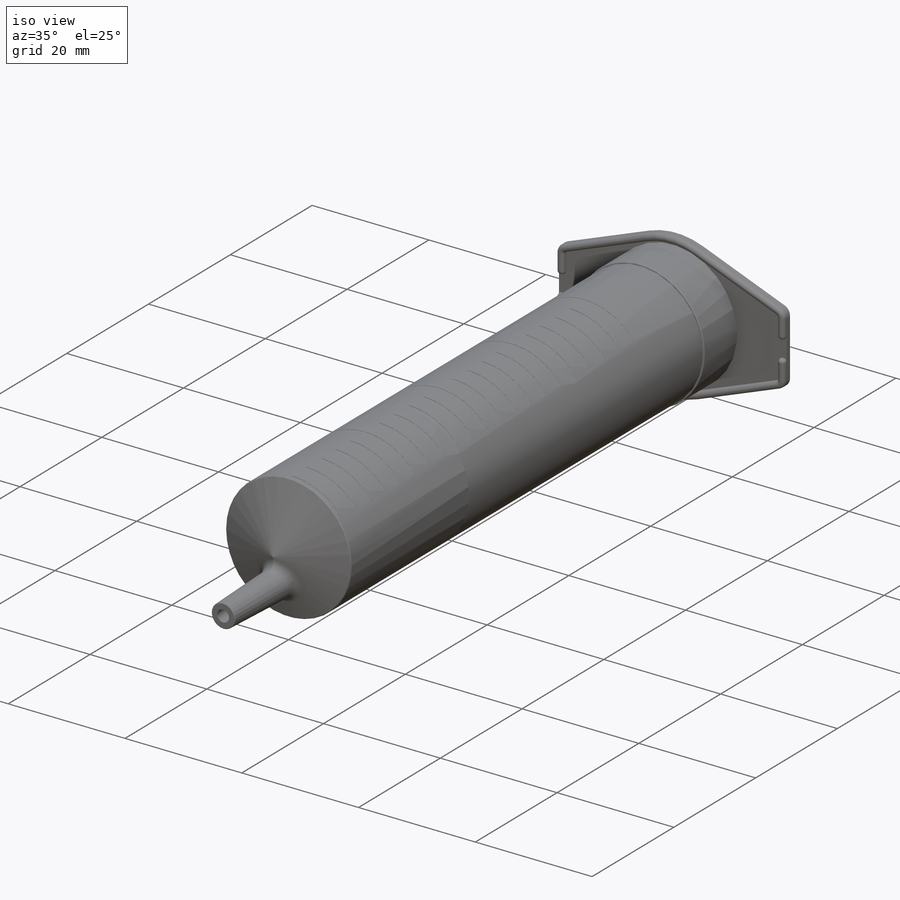
[diagram: iso view]
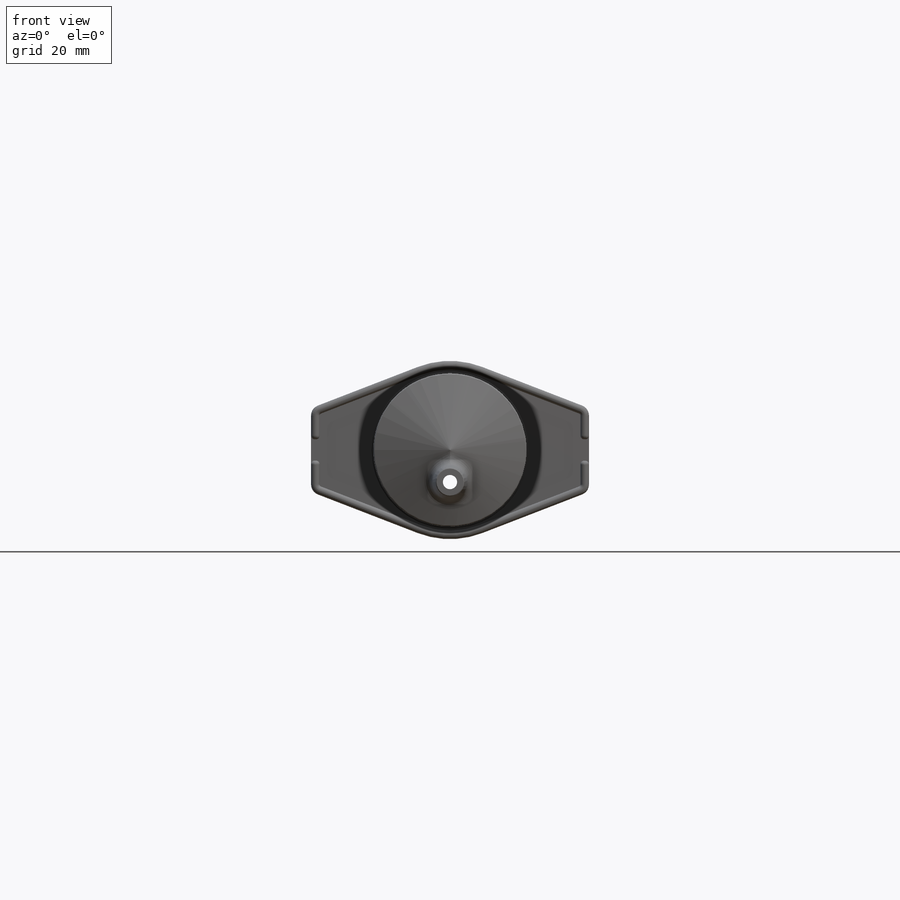
[diagram: front view]
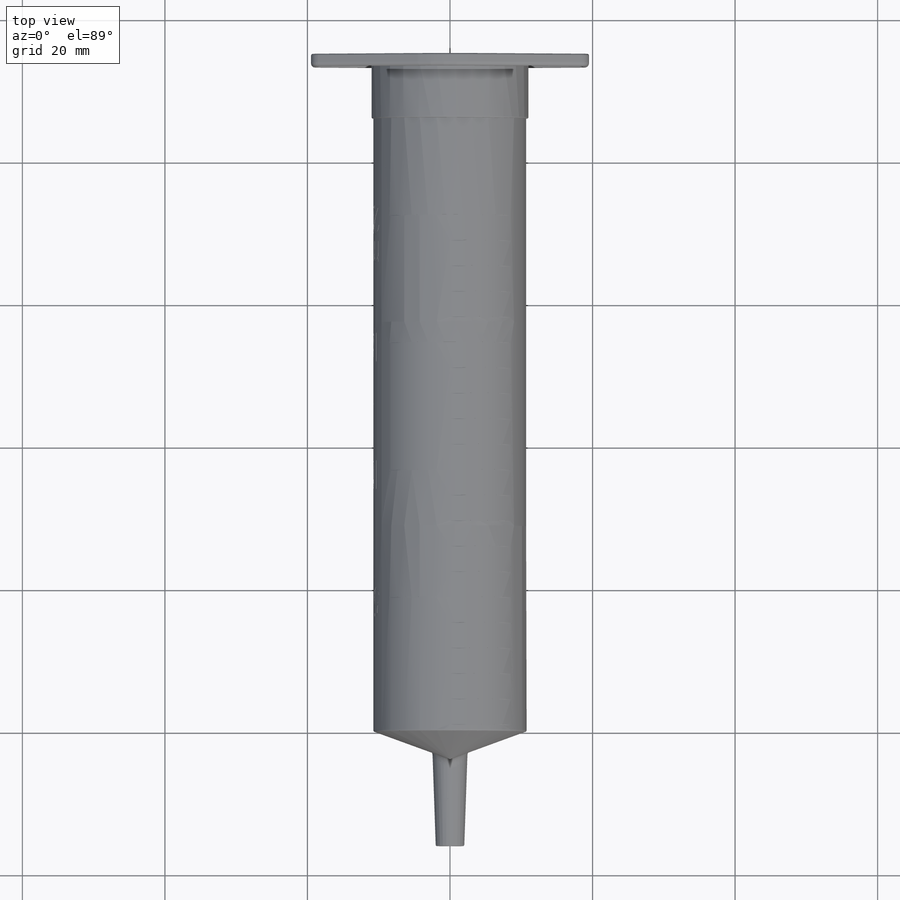
[diagram: top view]
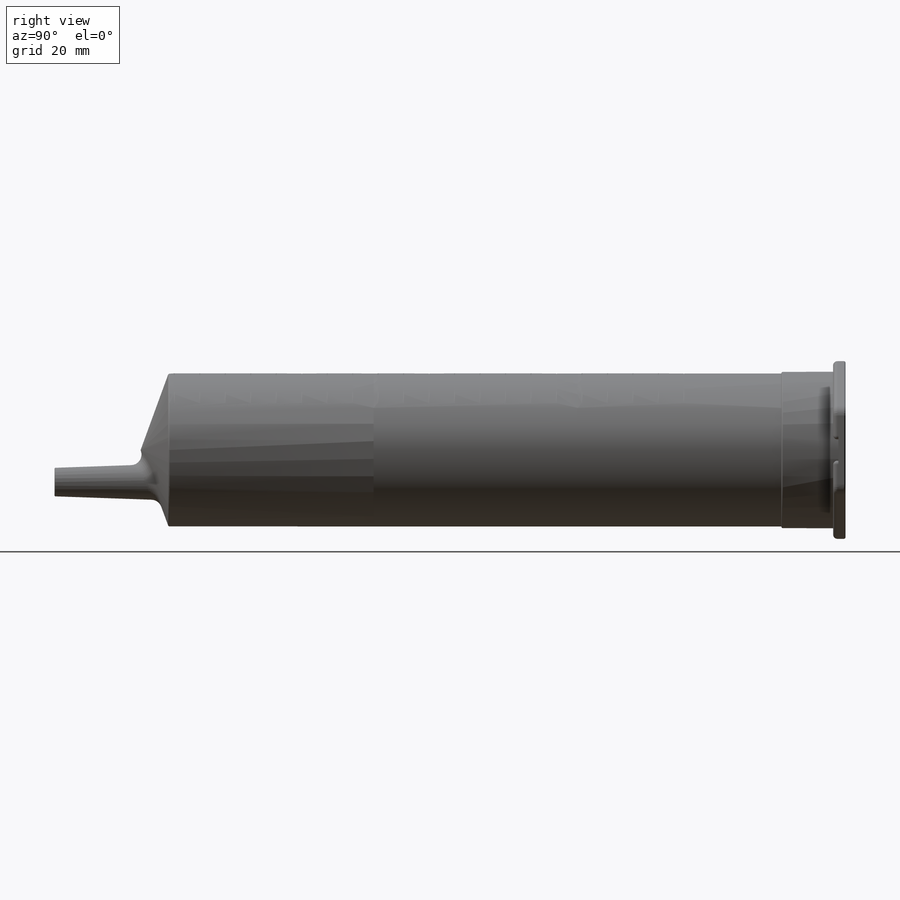
[diagram: right view]
SOLIDWORKS PART (.sldprt)
format: sldprt  version: not decoded by parser v0  size: 1,019,904 bytes
history: native  units: mm
features: plane x8, sketch x8, fillet x8, extrude x5, cut_extrude x2, material x1, revolve x1, shell x1, chamfer x1 (+8 scaffold rows collapsed)
feature tree (43):
  scaffold x8  (default folders/planes/origin — collapsed)
  material  "PE High Density"
  plane  "front"
  plane  "top"
  plane  "right"
  sketch  "Sketch7"  dims[c1.D1=100.0mm c1.D2=~26.560592mm c2.D2=~243.426813deg c2.D1=94.0mm c3.D2=21.5mm c3.D3=10.75mm c4.D3=250.0deg]
  revolve  "Revolve2"  Angle=360deg
  plane  "Plane3"  Offset=16mm
  sketch  "Sketch8"  dims[D2=4.0mm D1=4.5mm]
  extrude  "Boss-Extrude3"  [1 undecoded]
  shell  "Shell2"  Thickness=1mm
  fillet  "Fillet1"  Radius=1.5mm
  fillet  "Fillet2"  Radius=0.25mm
  chamfer  "Chamfer1"  Distance=0.1mm Angle=45deg
  fillet  "Fillet3"  Radius=0.1mm
  plane  "Plane4"
  sketch  "Sketch9"  dims[c1.D11=12.5mm c1.D1=39.0mm c1.D2=19.5mm c1.D3=25.0mm c1.D4=12.5mm c1.D5=6.25mm c1.D6=12.5mm c1.D7=25.0mm c1.D8=25.0mm c1.D9=20.0deg c1.D10=20.0deg c2.D11=~13.345085mm c2.D2=39.0mm c2.D5=19.5mm]
  extrude  "Boss-Extrude4"  Depth=1mm
  fillet  "Fillet4"  Radius=1.5mm
  sketch  "Sketch10"  dims[D1=0.25mm]
  extrude  "Boss-Extrude5"  Depth=1mm
  fillet  "Fillet5"  Radius=0.1mm
  sketch  "Sketch11"  dims[c1.D4=0.5mm c1.D2=3.0mm c1.D3=1.5mm c2.D2=1.5mm c2.D3=3.0mm c2.D4=~4.841839mm c2.D1=0.0mm c3.D2=1.2mm]
  extrude  "Boss-Extrude6"  Depth=0.75mm
  fillet  "Fillet6"  Radius=0.25mm
  fillet  "Fillet7"  Radius=0.6mm
  plane  "Plane5"
  sketch  "Sketch12"  dims[c1.D1=8.5mm c1.D2=0.1mm c1.D4=3.575mm c1.D5=17.875mm c1.D6=17.875mm c1.D7=17.875mm c2.D5=17.875mm]
  cut_extrude  "Cut-Extrude2"  Depth=0.05mm
  plane  "Plane6"
  plane  "Plane7"
  sketch  "Sketch13"  dims[D1=1.5mm D2=7.0mm D4=5.0mm D3=4.0]
  cut_extrude  "Cut-Extrude3"  Depth=0.05mm
  sketch  "Sketch14"  dims[c1.D1=~9.028308mm c1.D2=21.5mm c2.D1=0.25mm]
  extrude  "Boss-Extrude8"  Depth=8mm
  fillet  "Fillet8"  Radius=0.2mm
decode coverage: 25 of 26 modeling features carry decoded parameters
note: ~ marks probable driven/reference dimensions
note: 1 parameter value undecoded
note: suppression state not decoded; provenance and decode notes live in map.json
